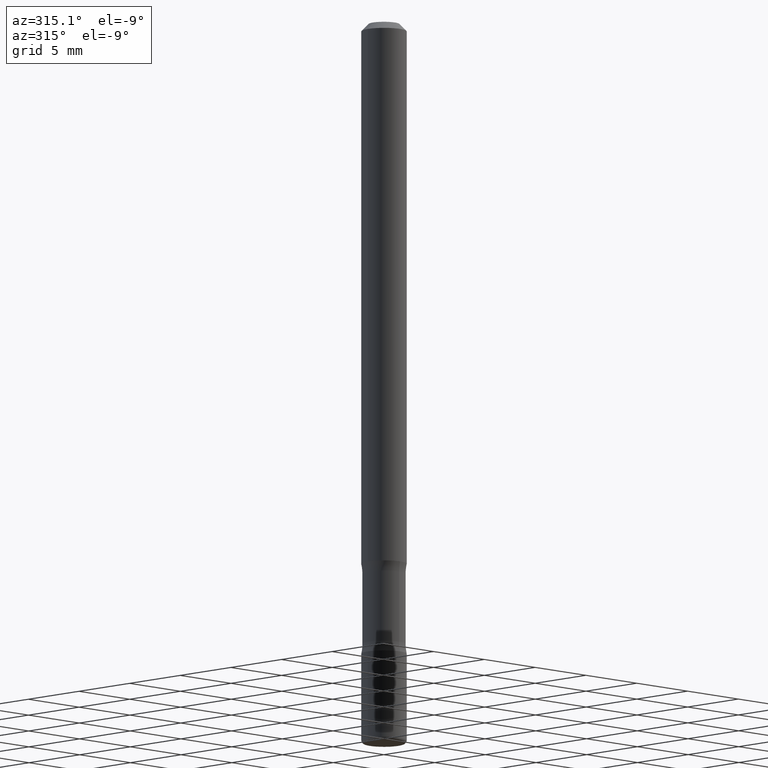
[diagram: clean part render]
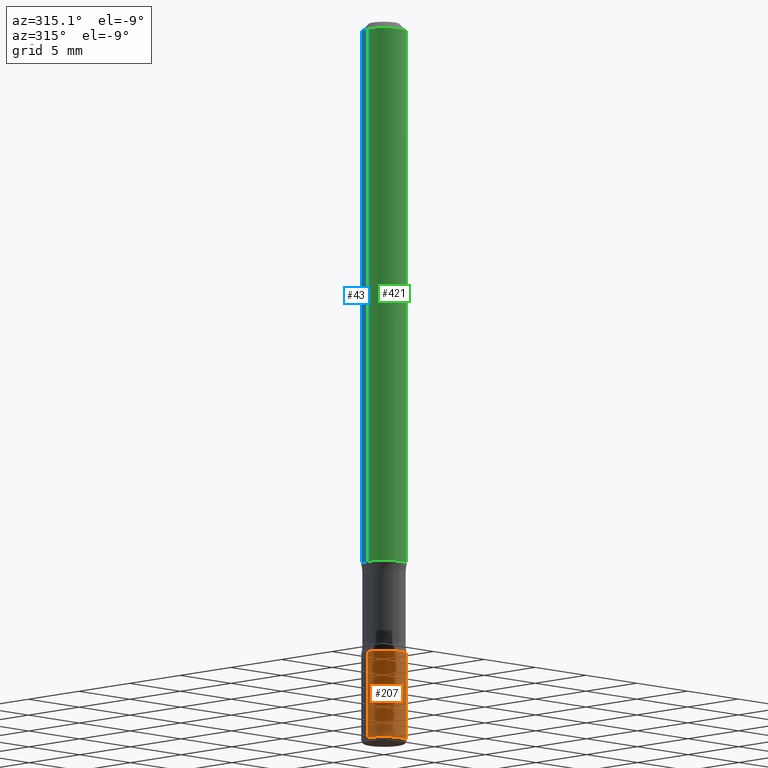
[diagram: same view with three faces highlighted in distinct colors, each labeled with its STEP entity id]
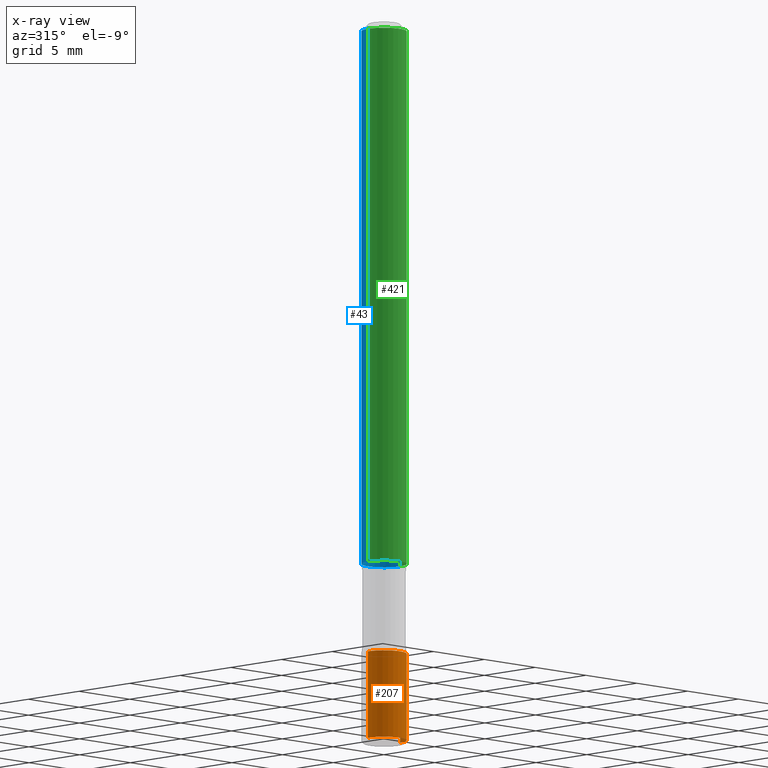
[diagram: x-ray of the same camera — body ghosted, the three highlighted faces saturated]
A machine part, auxiliary view with three faces highlighted in distinct colors.
The next image is the same camera in x-ray (body ghosted, the three faces saturated) — at least one of them is partly hidden behind the body in this view.
Their STEP definitions:

[orange] entity #207 — the highlighted cylindrical surface (edge-blend (fillet) strip) has radius 1.5875 mm, axis along (-0, 0, 1).
#11 = DIRECTION ( 'NONE',  ( -2.445468806185136597E-29, 3.491481338843145583E-15, 1.000000000000000000 ) ) ;
#17 = CARTESIAN_POINT ( 'NONE',  ( 0.06250000000000076328, -4.364351673553969942E-16, 3.047610484872497355E-30 ) ) ;
#22 = VERTEX_POINT ( 'NONE', #33 ) ;
#33 = CARTESIAN_POINT ( 'NONE',  ( -0.06250000000000062450, -6.084980893786609222E-15, -1.749999999999999112 ) ) ;
#52 = DIRECTION ( 'NONE',  ( 1.000000000000000000, -6.982962677686266711E-15, 4.876176775795936353E-29 ) ) ;
#56 = FACE_OUTER_BOUND ( 'NONE', #458, .T. ) ;
#60 = CARTESIAN_POINT ( 'NONE',  ( 0.000000000000000000, 0.000000000000000000, 0.000000000000000000 ) ) ;
#70 = LINE ( 'NONE', #17, #280 ) ;
#73 = AXIS2_PLACEMENT_3D ( 'NONE', #60, #11, #52 ) ;
#80 = LINE ( 'NONE', #334, #268 ) ;
#81 = CARTESIAN_POINT ( 'NONE',  ( -0.06250000000000111022, -6.503958654447783489E-15, -1.989999999999998215 ) ) ;
#116 = CARTESIAN_POINT ( 'NONE',  ( 4.279570410823987363E-29, -6.110092342975501516E-15, -1.749999999999999112 ) ) ;
#119 = DIRECTION ( 'NONE',  ( -2.445468806185136877E-29, 3.491481338843145188E-15, 1.000000000000000000 ) ) ;
#138 = EDGE_CURVE ( 'NONE', #508, #291, #70, .T. ) ;
#140 = AXIS2_PLACEMENT_3D ( 'NONE', #554, #166, #198 ) ;
#144 = ORIENTED_EDGE ( 'NONE', *, *, #319, .F. ) ;
#166 = DIRECTION ( 'NONE',  ( -2.445468806185136597E-29, 3.491481338843145583E-15, 1.000000000000000000 ) ) ;
#198 = DIRECTION ( 'NONE',  ( 1.000000000000000000, -6.982962677686270655E-15, 0.000000000000000000 ) ) ;
#207 = ADVANCED_FACE ( 'NONE', ( #56 ), #220, .T. ) ;
#220 = CYLINDRICAL_SURFACE ( 'NONE', #73, 0.06250000000000076328 ) ;
#242 = DIRECTION ( 'NONE',  ( 1.000000000000000000, -6.982962677686271444E-15, 0.000000000000000000 ) ) ;
#268 = VECTOR ( 'NONE', #119, 39.37007874015748143 ) ;
#272 = CARTESIAN_POINT ( 'NONE',  ( 0.06250000000000111022, -7.384483031653253552E-15, -1.989999999999998215 ) ) ;
#280 = VECTOR ( 'NONE', #390, 39.37007874015748143 ) ;
#291 = VERTEX_POINT ( 'NONE', #490 ) ;
#314 = EDGE_CURVE ( 'NONE', #519, #508, #347, .T. ) ;
#318 = ORIENTED_EDGE ( 'NONE', *, *, #314, .T. ) ;
#319 = EDGE_CURVE ( 'NONE', #22, #291, #446, .T. ) ;
#334 = CARTESIAN_POINT ( 'NONE',  ( -0.06250000000000076328, 4.440892098500680396E-16, -3.074334431409353598E-30 ) ) ;
#347 = CIRCLE ( 'NONE', #140, 0.06250000000000090206 ) ;
#361 = EDGE_CURVE ( 'NONE', #519, #22, #80, .T. ) ;
#390 = DIRECTION ( 'NONE',  ( -2.445468806185136877E-29, 3.491481338843145188E-15, 1.000000000000000000 ) ) ;
#404 = AXIS2_PLACEMENT_3D ( 'NONE', #116, #526, #242 ) ;
#446 = CIRCLE ( 'NONE', #404, 0.06250000000000062450 ) ;
#451 = ORIENTED_EDGE ( 'NONE', *, *, #361, .F. ) ;
#458 = EDGE_LOOP ( 'NONE', ( #451, #318, #555, #144 ) ) ;
#490 = CARTESIAN_POINT ( 'NONE',  ( 0.06250000000000062450, -6.546527510330897918E-15, -1.749999999999999112 ) ) ;
#508 = VERTEX_POINT ( 'NONE', #272 ) ;
#519 = VERTEX_POINT ( 'NONE', #81 ) ;
#526 = DIRECTION ( 'NONE',  ( -2.445468806185136597E-29, 3.491481338843145583E-15, 1.000000000000000000 ) ) ;
#554 = CARTESIAN_POINT ( 'NONE',  ( 4.866482924308417164E-29, -6.948047864297853205E-15, -1.989999999999998215 ) ) ;
#555 = ORIENTED_EDGE ( 'NONE', *, *, #138, .T. ) ;

[blue] entity #43 — the highlighted cylindrical surface (edge-blend (fillet) strip) has radius 1.5875 mm, axis along (-0, 0, 1).
#8 = LINE ( 'NONE', #176, #238 ) ;
#13 = EDGE_CURVE ( 'NONE', #41, #553, #463, .T. ) ;
#19 = VERTEX_POINT ( 'NONE', #455 ) ;
#32 = ORIENTED_EDGE ( 'NONE', *, *, #264, .T. ) ;
#41 = VERTEX_POINT ( 'NONE', #506 ) ;
#43 = ADVANCED_FACE ( 'NONE', ( #320 ), #241, .T. ) ;
#58 = CARTESIAN_POINT ( 'NONE',  ( 0.06250000000000073552, -4.364351673553967477E-16, 3.047610484872495604E-30 ) ) ;
#113 = ORIENTED_EDGE ( 'NONE', *, *, #408, .F. ) ;
#114 = DIRECTION ( 'NONE',  ( 1.000000000000000000, -6.982962677686270655E-15, 0.000000000000000000 ) ) ;
#122 = AXIS2_PLACEMENT_3D ( 'NONE', #550, #466, #114 ) ;
#137 = DIRECTION ( 'NONE',  ( -2.445468806185136877E-29, 3.491481338843145188E-15, 1.000000000000000000 ) ) ;
#176 = CARTESIAN_POINT ( 'NONE',  ( -0.06250000000000073552, 4.440892098500678424E-16, -3.074334431409351847E-30 ) ) ;
#238 = VECTOR ( 'NONE', #137, 39.37007874015748143 ) ;
#241 = CYLINDRICAL_SURFACE ( 'NONE', #345, 0.06250000000000073552 ) ;
#264 = EDGE_CURVE ( 'NONE', #553, #19, #8, .T. ) ;
#274 = CARTESIAN_POINT ( 'NONE',  ( 0.06250000000000056899, -4.986107516375879651E-16, -0.02000000000000013572 ) ) ;
#277 = CARTESIAN_POINT ( 'NONE',  ( 0.000000000000000000, 0.000000000000000000, 0.000000000000000000 ) ) ;
#301 = DIRECTION ( 'NONE',  ( -2.445468806185136877E-29, 3.491481338843145188E-15, 1.000000000000000000 ) ) ;
#320 = FACE_OUTER_BOUND ( 'NONE', #527, .T. ) ;
#330 = AXIS2_PLACEMENT_3D ( 'NONE', #439, #392, #487 ) ;
#345 = AXIS2_PLACEMENT_3D ( 'NONE', #277, #502, #422 ) ;
#366 = VECTOR ( 'NONE', #301, 39.37007874015748143 ) ;
#389 = ORIENTED_EDGE ( 'NONE', *, *, #520, .F. ) ;
#392 = DIRECTION ( 'NONE',  ( -2.445468806185136597E-29, 3.491481338843145583E-15, 1.000000000000000000 ) ) ;
#408 = EDGE_CURVE ( 'NONE', #454, #19, #552, .T. ) ;
#410 = ORIENTED_EDGE ( 'NONE', *, *, #13, .T. ) ;
#422 = DIRECTION ( 'NONE',  ( 1.000000000000000000, -6.982962677686265922E-15, 4.876176775795935793E-29 ) ) ;
#439 = CARTESIAN_POINT ( 'NONE',  ( 4.890937612370306439E-31, -6.982962677686338448E-17, -0.02000000000000013572 ) ) ;
#454 = VERTEX_POINT ( 'NONE', #274 ) ;
#455 = CARTESIAN_POINT ( 'NONE',  ( -0.06250000000000056899, 3.666055405785322169E-16, -0.02000000000000013572 ) ) ;
#463 = CIRCLE ( 'NONE', #122, 0.06250000000000090206 ) ;
#466 = DIRECTION ( 'NONE',  ( -2.445468806185136597E-29, 3.491481338843145583E-15, 1.000000000000000000 ) ) ;
#477 = CARTESIAN_POINT ( 'NONE',  ( -0.06250000000000090206, -2.209436607670712344E-15, -1.499999999999998668 ) ) ;
#487 = DIRECTION ( 'NONE',  ( 1.000000000000000000, -6.982962677686265922E-15, 0.000000000000000000 ) ) ;
#502 = DIRECTION ( 'NONE',  ( -2.445468806185136597E-29, 3.491481338843145583E-15, 1.000000000000000000 ) ) ;
#506 = CARTESIAN_POINT ( 'NONE',  ( 0.06250000000000090206, -5.673657175620112213E-15, -1.499999999999998668 ) ) ;
#520 = EDGE_CURVE ( 'NONE', #41, #454, #535, .T. ) ;
#527 = EDGE_LOOP ( 'NONE', ( #410, #32, #113, #389 ) ) ;
#535 = LINE ( 'NONE', #58, #366 ) ;
#550 = CARTESIAN_POINT ( 'NONE',  ( 3.668203209277701532E-29, -5.237222008264713444E-15, -1.499999999999998668 ) ) ;
#552 = CIRCLE ( 'NONE', #330, 0.06250000000000056899 ) ;
#553 = VERTEX_POINT ( 'NONE', #477 ) ;

[green] entity #421 — the highlighted cylindrical surface (edge-blend (fillet) strip) has radius 1.5875 mm, axis along (-0, 0, 1).
#8 = LINE ( 'NONE', #176, #238 ) ;
#19 = VERTEX_POINT ( 'NONE', #455 ) ;
#30 = EDGE_LOOP ( 'NONE', ( #84, #331, #468, #496 ) ) ;
#41 = VERTEX_POINT ( 'NONE', #506 ) ;
#58 = CARTESIAN_POINT ( 'NONE',  ( 0.06250000000000073552, -4.364351673553967477E-16, 3.047610484872495604E-30 ) ) ;
#64 = CIRCLE ( 'NONE', #199, 0.06250000000000090206 ) ;
#82 = DIRECTION ( 'NONE',  ( 1.000000000000000000, -6.982962677686265922E-15, 4.876176775795935793E-29 ) ) ;
#84 = ORIENTED_EDGE ( 'NONE', *, *, #264, .F. ) ;
#87 = DIRECTION ( 'NONE',  ( -2.445468806185136597E-29, 3.491481338843145583E-15, 1.000000000000000000 ) ) ;
#93 = CYLINDRICAL_SURFACE ( 'NONE', #209, 0.06250000000000073552 ) ;
#112 = AXIS2_PLACEMENT_3D ( 'NONE', #443, #145, #396 ) ;
#134 = DIRECTION ( 'NONE',  ( 1.000000000000000000, -6.982962677686270655E-15, 0.000000000000000000 ) ) ;
#137 = DIRECTION ( 'NONE',  ( -2.445468806185136877E-29, 3.491481338843145188E-15, 1.000000000000000000 ) ) ;
#145 = DIRECTION ( 'NONE',  ( -2.445468806185136597E-29, 3.491481338843145583E-15, 1.000000000000000000 ) ) ;
#176 = CARTESIAN_POINT ( 'NONE',  ( -0.06250000000000073552, 4.440892098500678424E-16, -3.074334431409351847E-30 ) ) ;
#199 = AXIS2_PLACEMENT_3D ( 'NONE', #350, #486, #134 ) ;
#209 = AXIS2_PLACEMENT_3D ( 'NONE', #442, #87, #82 ) ;
#226 = EDGE_CURVE ( 'NONE', #19, #454, #354, .T. ) ;
#238 = VECTOR ( 'NONE', #137, 39.37007874015748143 ) ;
#251 = EDGE_CURVE ( 'NONE', #553, #41, #64, .T. ) ;
#264 = EDGE_CURVE ( 'NONE', #553, #19, #8, .T. ) ;
#274 = CARTESIAN_POINT ( 'NONE',  ( 0.06250000000000056899, -4.986107516375879651E-16, -0.02000000000000013572 ) ) ;
#301 = DIRECTION ( 'NONE',  ( -2.445468806185136877E-29, 3.491481338843145188E-15, 1.000000000000000000 ) ) ;
#305 = FACE_OUTER_BOUND ( 'NONE', #30, .T. ) ;
#331 = ORIENTED_EDGE ( 'NONE', *, *, #251, .T. ) ;
#350 = CARTESIAN_POINT ( 'NONE',  ( 3.668203209277701532E-29, -5.237222008264713444E-15, -1.499999999999998668 ) ) ;
#354 = CIRCLE ( 'NONE', #112, 0.06250000000000056899 ) ;
#366 = VECTOR ( 'NONE', #301, 39.37007874015748143 ) ;
#396 = DIRECTION ( 'NONE',  ( 1.000000000000000000, -6.982962677686265922E-15, 0.000000000000000000 ) ) ;
#421 = ADVANCED_FACE ( 'NONE', ( #305 ), #93, .T. ) ;
#442 = CARTESIAN_POINT ( 'NONE',  ( 0.000000000000000000, 0.000000000000000000, 0.000000000000000000 ) ) ;
#443 = CARTESIAN_POINT ( 'NONE',  ( 4.890937612370306439E-31, -6.982962677686338448E-17, -0.02000000000000013572 ) ) ;
#454 = VERTEX_POINT ( 'NONE', #274 ) ;
#455 = CARTESIAN_POINT ( 'NONE',  ( -0.06250000000000056899, 3.666055405785322169E-16, -0.02000000000000013572 ) ) ;
#468 = ORIENTED_EDGE ( 'NONE', *, *, #520, .T. ) ;
#477 = CARTESIAN_POINT ( 'NONE',  ( -0.06250000000000090206, -2.209436607670712344E-15, -1.499999999999998668 ) ) ;
#486 = DIRECTION ( 'NONE',  ( -2.445468806185136597E-29, 3.491481338843145583E-15, 1.000000000000000000 ) ) ;
#496 = ORIENTED_EDGE ( 'NONE', *, *, #226, .F. ) ;
#506 = CARTESIAN_POINT ( 'NONE',  ( 0.06250000000000090206, -5.673657175620112213E-15, -1.499999999999998668 ) ) ;
#520 = EDGE_CURVE ( 'NONE', #41, #454, #535, .T. ) ;
#535 = LINE ( 'NONE', #58, #366 ) ;
#553 = VERTEX_POINT ( 'NONE', #477 ) ;